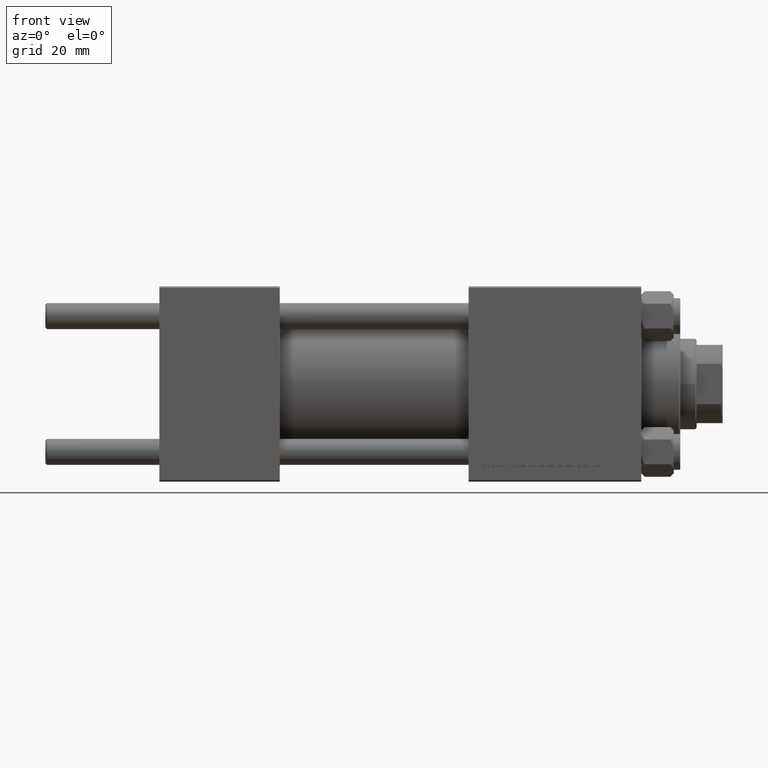
[diagram: clean part render]
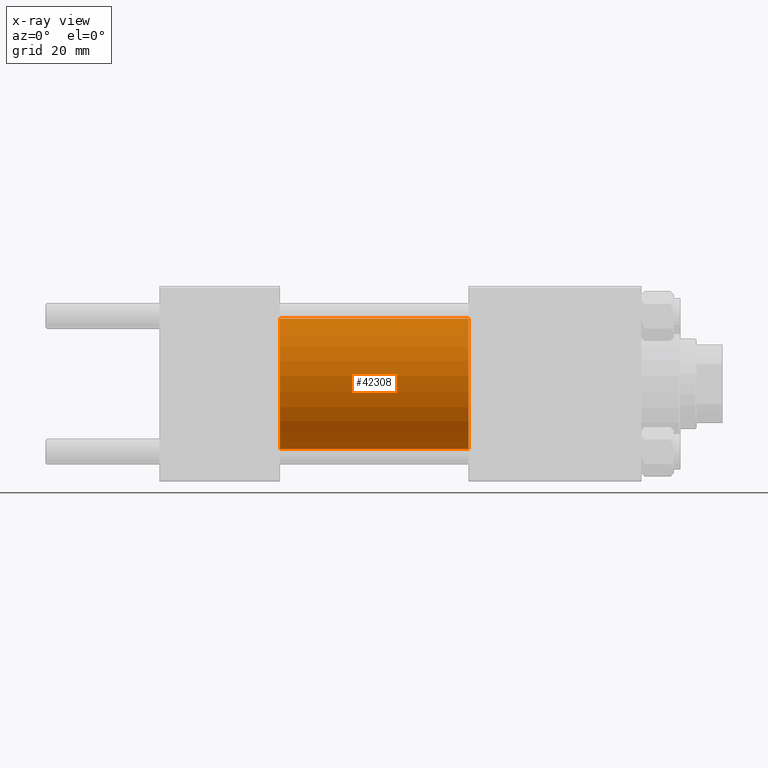
[diagram: x-ray — body ghosted, one internal face saturated and labeled with its STEP entity id]
A machine part, front view, then the same camera in x-ray: the body is ghosted and one INTERNAL B-rep face — a face not visible from any outside direction — is saturated and labeled: STEP entity #42308.
In plain terms, the highlighted cylindrical surface (partial cylindrical patch) has radius 20 mm, axis along (-1, -0, -0).
Its self-contained STEP definition (entity closure, byte-faithful):
#1475 = ORIENTED_EDGE ( 'NONE', *, *, #9224, .F. ) ;
#2663 = AXIS2_PLACEMENT_3D ( 'NONE', #47016, #21005, #39441 ) ;
#3787 = EDGE_CURVE ( 'NONE', #48410, #44114, #42976, .T. ) ;
#4125 = EDGE_CURVE ( 'NONE', #44114, #38257, #43103, .T. ) ;
#4437 = DIRECTION ( 'NONE',  ( 1.000000000000000000, 0.000000000000000000, 0.000000000000000000 ) ) ;
#4910 = EDGE_LOOP ( 'NONE', ( #44516, #43648, #1475, #41727 ) ) ;
#8544 = DIRECTION ( 'NONE',  ( -1.000000000000000000, -0.000000000000000000, -0.000000000000000000 ) ) ;
#9224 = EDGE_CURVE ( 'NONE', #29224, #38257, #38125, .T. ) ;
#11275 = VECTOR ( 'NONE', #40095, 1000.000000000000000 ) ;
#16501 = CARTESIAN_POINT ( 'NONE',  ( 37.00000000000000000, 0.000000000000000000, 20.00000000000000000 ) ) ;
#20686 = LINE ( 'NONE', #47680, #11275 ) ;
#21005 = DIRECTION ( 'NONE',  ( 1.000000000000000000, 0.000000000000000000, 0.000000000000000000 ) ) ;
#22510 = CARTESIAN_POINT ( 'NONE',  ( 37.00000000000000000, 2.449293598294706119E-15, -20.00000000000000000 ) ) ;
#22822 = AXIS2_PLACEMENT_3D ( 'NONE', #38765, #4437, #27664 ) ;
#24278 = DIRECTION ( 'NONE',  ( -1.000000000000000000, -0.000000000000000000, -0.000000000000000000 ) ) ;
#24758 = FACE_OUTER_BOUND ( 'NONE', #4910, .T. ) ;
#26814 = CARTESIAN_POINT ( 'NONE',  ( 95.00000000000000000, 2.449293598294706119E-15, -20.00000000000000000 ) ) ;
#27664 = DIRECTION ( 'NONE',  ( 0.000000000000000000, 0.000000000000000000, -1.000000000000000000 ) ) ;
#29224 = VERTEX_POINT ( 'NONE', #16501 ) ;
#31141 = AXIS2_PLACEMENT_3D ( 'NONE', #40144, #24278, #36112 ) ;
#31757 = CARTESIAN_POINT ( 'NONE',  ( 95.00000000000000000, 2.449293598294706119E-15, -20.00000000000000000 ) ) ;
#32819 = CYLINDRICAL_SURFACE ( 'NONE', #31141, 20.00000000000000000 ) ;
#33077 = EDGE_CURVE ( 'NONE', #48410, #29224, #20686, .T. ) ;
#36112 = DIRECTION ( 'NONE',  ( 0.000000000000000000, 0.000000000000000000, 1.000000000000000000 ) ) ;
#38125 = CIRCLE ( 'NONE', #22822, 20.00000000000000000 ) ;
#38257 = VERTEX_POINT ( 'NONE', #22510 ) ;
#38765 = CARTESIAN_POINT ( 'NONE',  ( 37.00000000000000000, 0.000000000000000000, 0.000000000000000000 ) ) ;
#39441 = DIRECTION ( 'NONE',  ( 0.000000000000000000, 0.000000000000000000, -1.000000000000000000 ) ) ;
#40095 = DIRECTION ( 'NONE',  ( -1.000000000000000000, -0.000000000000000000, -0.000000000000000000 ) ) ;
#40144 = CARTESIAN_POINT ( 'NONE',  ( 95.00000000000000000, 0.000000000000000000, 0.000000000000000000 ) ) ;
#41727 = ORIENTED_EDGE ( 'NONE', *, *, #33077, .F. ) ;
#41977 = CARTESIAN_POINT ( 'NONE',  ( 95.00000000000000000, 0.000000000000000000, 20.00000000000000000 ) ) ;
#42308 = ADVANCED_FACE ( 'NONE', ( #24758 ), #32819, .F. ) ;
#42976 = CIRCLE ( 'NONE', #2663, 20.00000000000000000 ) ;
#43103 = LINE ( 'NONE', #31757, #46179 ) ;
#43648 = ORIENTED_EDGE ( 'NONE', *, *, #4125, .T. ) ;
#44114 = VERTEX_POINT ( 'NONE', #26814 ) ;
#44516 = ORIENTED_EDGE ( 'NONE', *, *, #3787, .T. ) ;
#46179 = VECTOR ( 'NONE', #8544, 1000.000000000000000 ) ;
#47016 = CARTESIAN_POINT ( 'NONE',  ( 95.00000000000000000, 0.000000000000000000, 0.000000000000000000 ) ) ;
#47680 = CARTESIAN_POINT ( 'NONE',  ( 95.00000000000000000, 0.000000000000000000, 20.00000000000000000 ) ) ;
#48410 = VERTEX_POINT ( 'NONE', #41977 ) ;